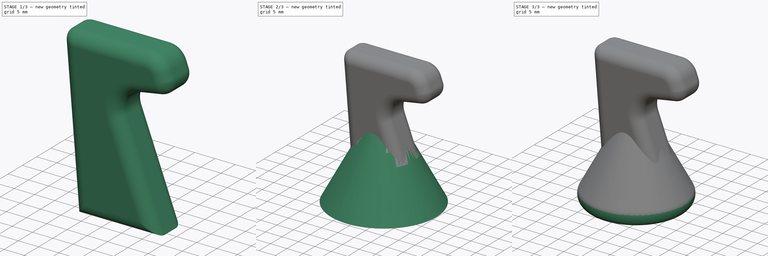
[diagram: build sequence overview — one tinted view per stage of 3, left to right]
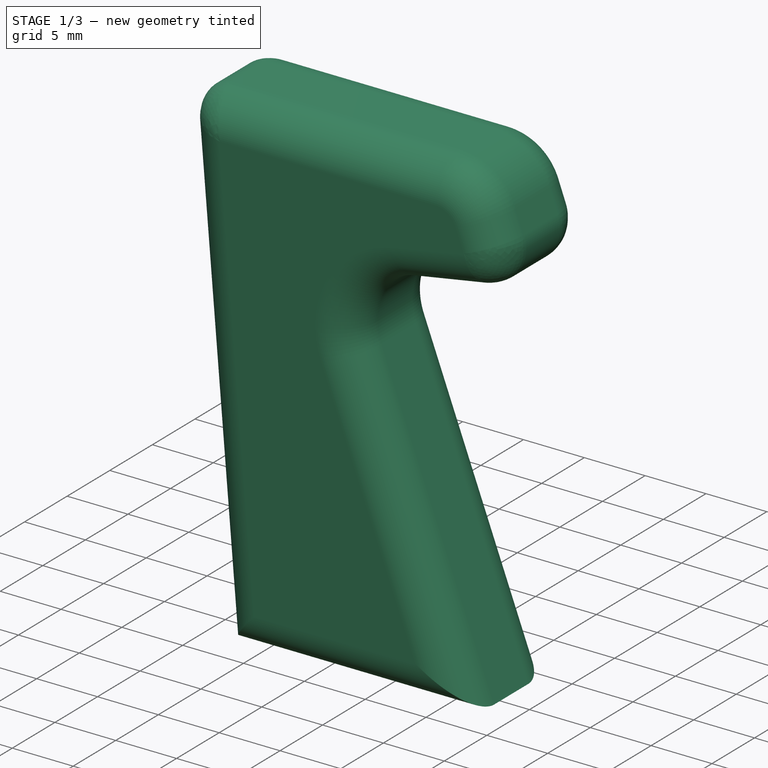
[diagram: stage 1 of 3 — iso view after this stage's code; geometry added in this stage tinted green]
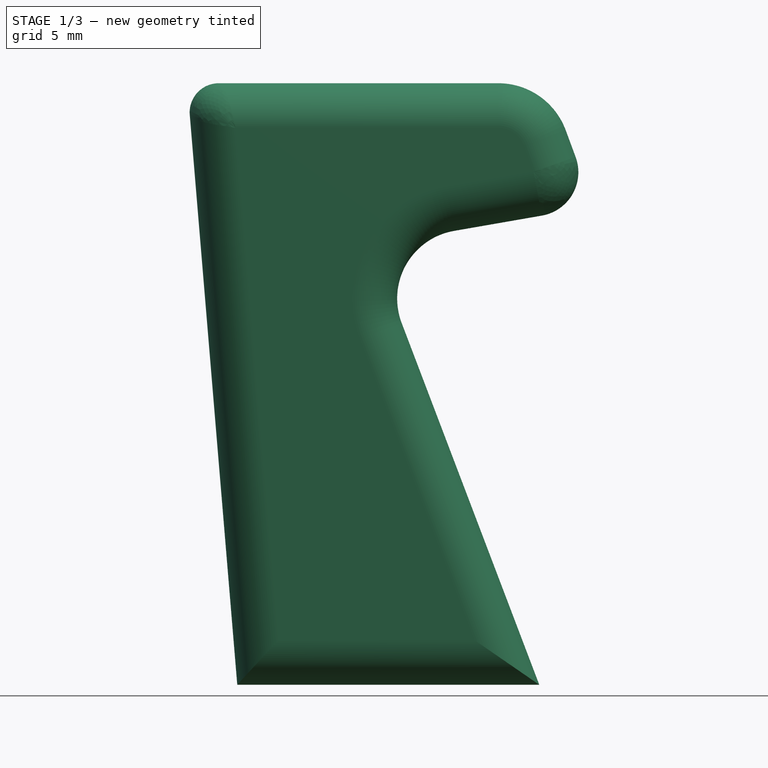
[diagram: stage 1 of 3 — front view after this stage's code; geometry added in this stage tinted green]
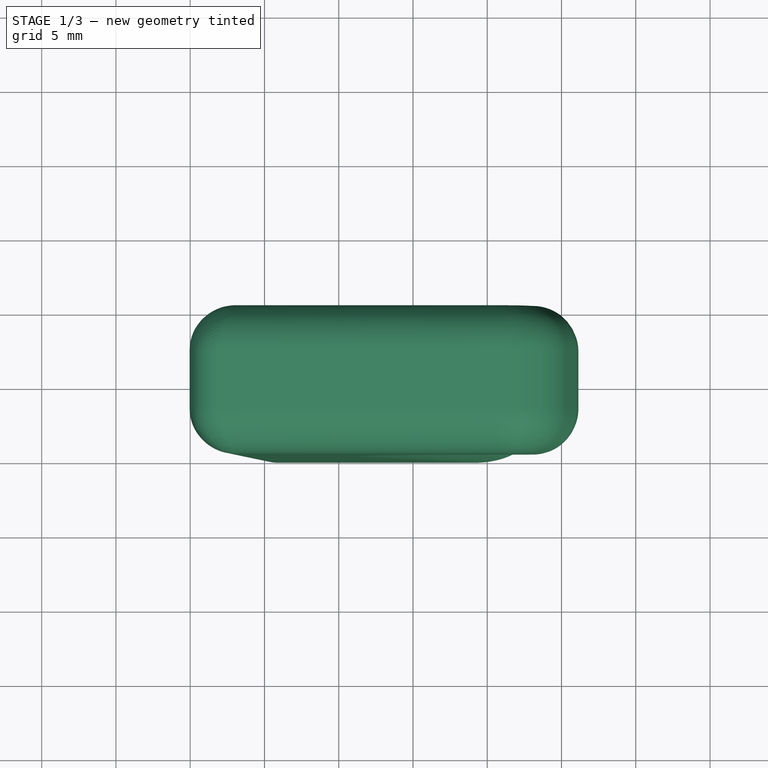
[diagram: stage 1 of 3 — top view after this stage's code; geometry added in this stage tinted green]
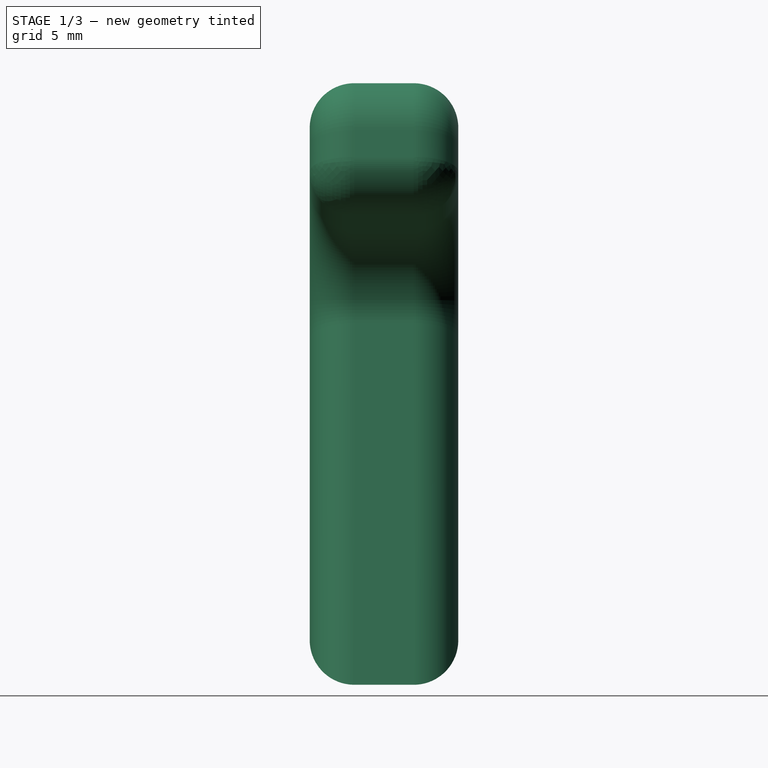
[diagram: stage 1 of 3 — right view after this stage's code; geometry added in this stage tinted green]
FCSTD DOCUMENT  (FreeCAD 0.16R)
Label: Knight1
License: All rights reserved
LicenseURL: http://en.wikipedia.org/wiki/All_rights_reserved
objects: Sketcher::SketchObject×2, PartDesign::Fillet×2, PartDesign::Pad×1, PartDesign::Revolution×1, Part::MultiFuse×1
note: 9 computed .brp shape members not serialized (recipe doc carries the construction recipe); baked Part::Feature solids carry a one-line shape summary decoded from their .brp

FEATURE [Sketcher::SketchObject] Sketch
  Placement = pos=(0,0,0) rot=(-1,0,0;4.71239rad)
  sketch-geometry (10):
    g0: LineSegment StartX=-8.0749 StartY=40.5004 StartZ=0 EndX=10.7419 EndY=40.5004 EndZ=0
    g1: LineSegment StartX=15.2796 StartY=37.3423 StartZ=0 EndX=15.9481 EndY=35.5376 EndZ=0
    g2: LineSegment StartX=13.6765 StartY=31.5873 StartZ=0 EndX=7.76112 EndY=30.558 EndZ=0
    g3: LineSegment StartX=4.23433 StartY=24.3626 StartZ=0 EndX=13.5019 EndY=0 EndZ=0
    g4: LineSegment StartX=13.5019 StartY=0 StartZ=0 EndX=-6.83208 EndY=0 EndZ=0
    g5: LineSegment StartX=-10.0309 StartY=38.3745 StartZ=0 EndX=-6.83208 EndY=0 EndZ=0
    g6: ArcOfCircle CenterX=-8.0749 CenterY=38.5375 CenterZ=0 NormalX=0 NormalY=0 NormalZ=1 Radius=1.96282 StartAngle=1.5708 EndAngle=3.22476
    g7: ArcOfCircle CenterX=8.55326 CenterY=26.0055 CenterZ=0 NormalX=0 NormalY=0 NormalZ=1 Radius=4.62086 StartAngle=1.74307 EndAngle=3.50509
    g8: ArcOfCircle CenterX=10.7419 CenterY=35.6613 CenterZ=0 NormalX=0 NormalY=0 NormalZ=1 Radius=4.83904 StartAngle=0.354783 EndAngle=1.5708
    g9: ArcOfCircle CenterX=13.1683 CenterY=34.5078 CenterZ=0 NormalX=0 NormalY=0 NormalZ=1 Radius=2.96441 StartAngle=4.88467 EndAngle=6.63797
  constraints (13):
    c: Horizontal(g0)
    c: Coincident(g3,g4)
    c: PointOnObject(g4,g-1)
    c: Horizontal(g4)
    c: Coincident(g5,g4)
    c: Tangent(g0,g6) = 1.5708
    c: Tangent(g5,g6) = -1.5708
    c: Tangent(g2,g7) = -1.5708
    c: Tangent(g3,g7) = -1.5708
    c: Tangent(g0,g8) = 1.5708
    c: Tangent(g1,g8) = 1.5708
    c: Tangent(g1,g9) = 1.5708
    c: Tangent(g2,g9) = 1.5708
FEATURE [PartDesign::Pad] Pad
  Length = 10
  Length2 = 100
  Midplane = true
  Placement = pos=(0,0,0) rot=(-1,0,0;4.71239rad)
  Sketch = -> Sketch
  Type = 0
FEATURE [PartDesign::Fillet] Fillet
  Base = -> Pad [Edge4,Edge7,Edge10,Edge13,Edge16,Edge19,Edge22,Edge25,Edge28,Edge30,Edge3,Edge6,Edge9,Edge12,Edge15,Edge18,Edge21,Edge24,Edge27,Edge29]
  Placement = pos=(0,0,0) rot=(-1,0,0;4.71239rad)
  Radius = 3
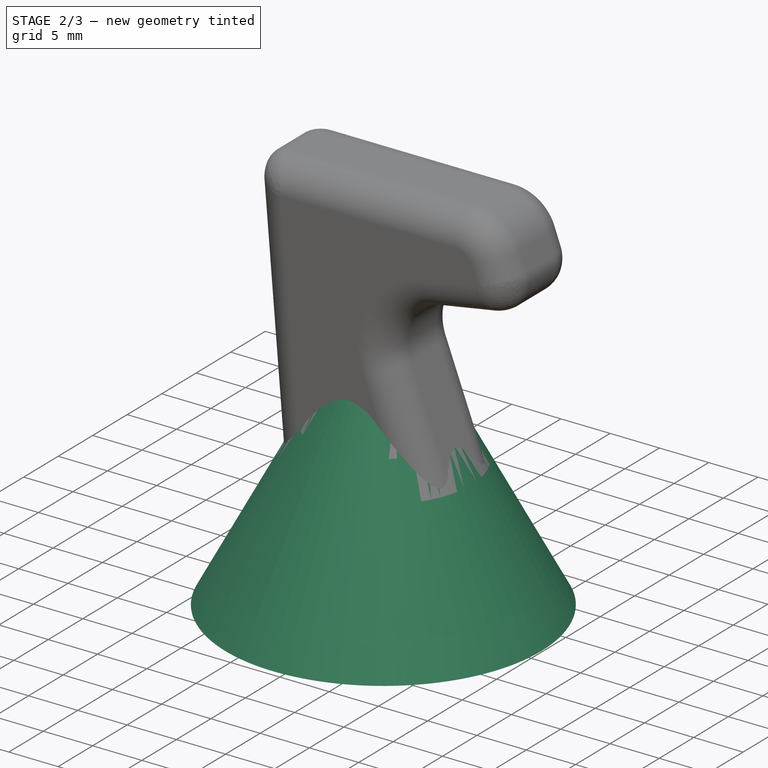
[diagram: stage 2 of 3 — iso view after this stage's code; geometry added in this stage tinted green]
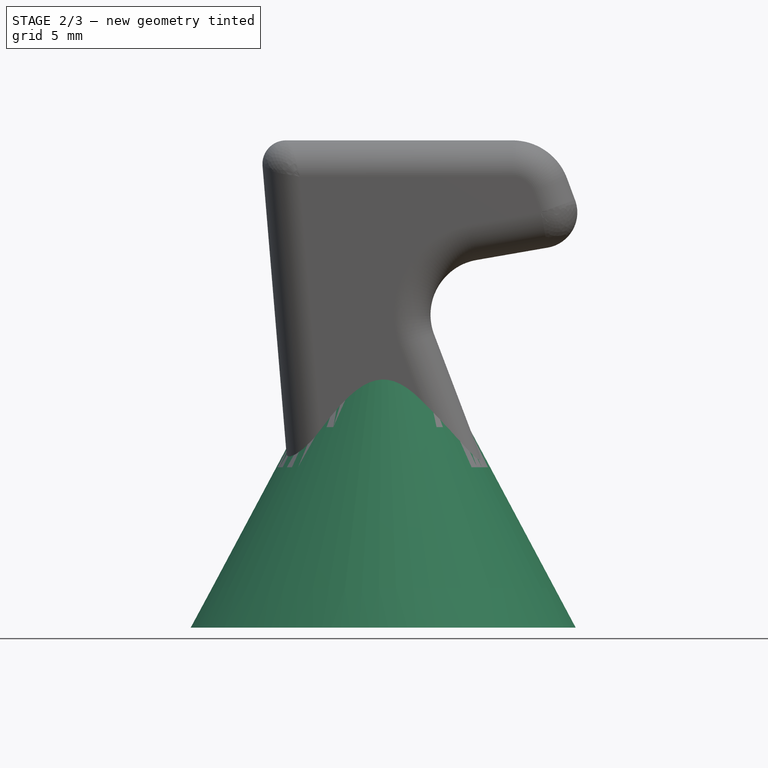
[diagram: stage 2 of 3 — front view after this stage's code; geometry added in this stage tinted green]
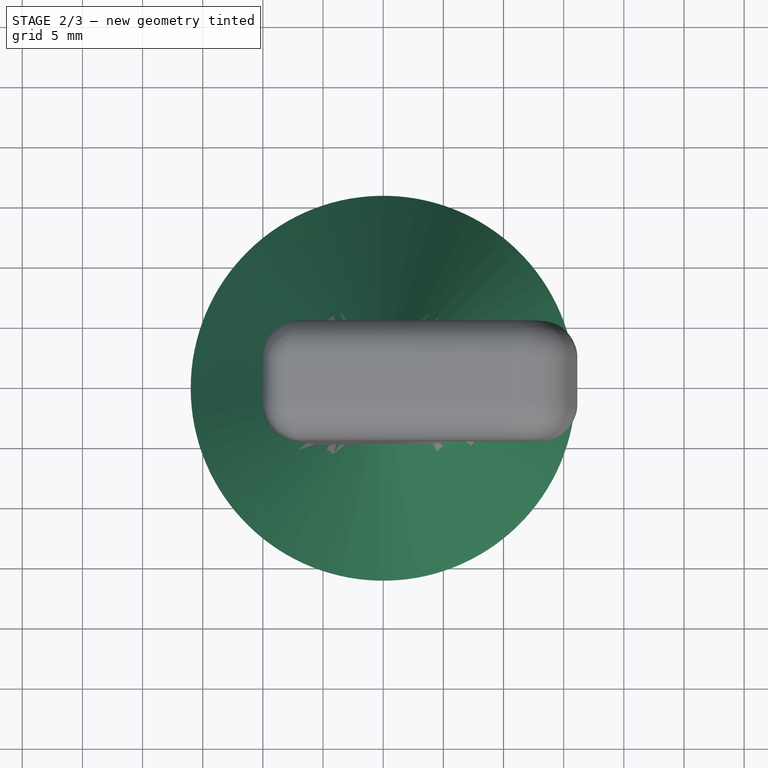
[diagram: stage 2 of 3 — top view after this stage's code; geometry added in this stage tinted green]
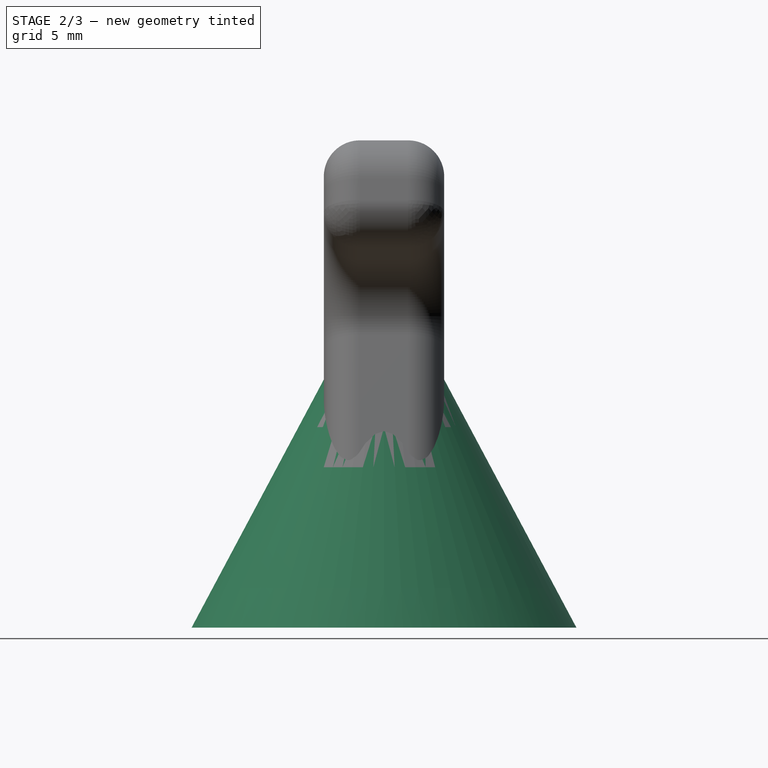
[diagram: stage 2 of 3 — right view after this stage's code; geometry added in this stage tinted green]
FEATURE [Sketcher::SketchObject] Sketch001
  Placement = pos=(0,0,0) rot=(-1,0,0;4.71239rad)
  sketch-geometry (3):
    g0: LineSegment StartX=0 StartY=30 StartZ=0 EndX=16 EndY=0 EndZ=0
    g1: LineSegment StartX=16 StartY=0 StartZ=0 EndX=0 EndY=0 EndZ=0
    g2: LineSegment StartX=0 StartY=0 StartZ=0 EndX=0 EndY=30 EndZ=0
  constraints (8):
    c: Coincident(g0,g1)
    c: Coincident(g1,g-1)
    c: Horizontal(g1)
    c: Coincident(g1,g2)
    c: Coincident(g2,g0)
    c: Vertical(g2)
    c: DistanceX(g1,g1) = 16
    c: DistanceY(g2,g2) = 30
FEATURE [PartDesign::Revolution] Revolution
  Angle = 360
  Axis = (0,0,1)
  Base = (0,0,0)
  Placement = pos=(0,0,0) rot=(-1,0,0;4.71239rad)
  ReferenceAxis = -> Sketch001 [V_Axis]
  Reversed = true
  Sketch = -> Sketch001
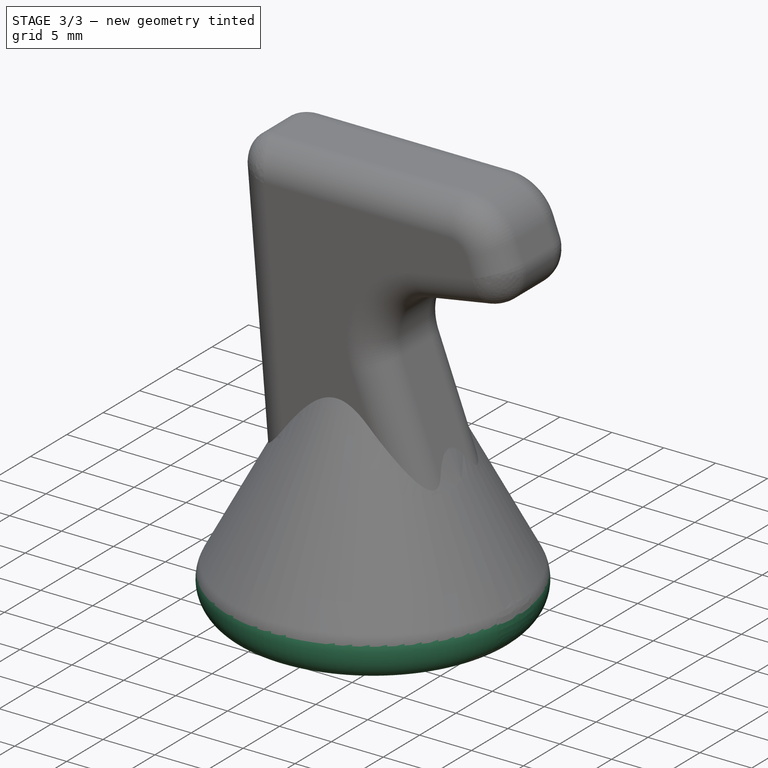
[diagram: stage 3 of 3 — iso view after this stage's code; geometry added in this stage tinted green]
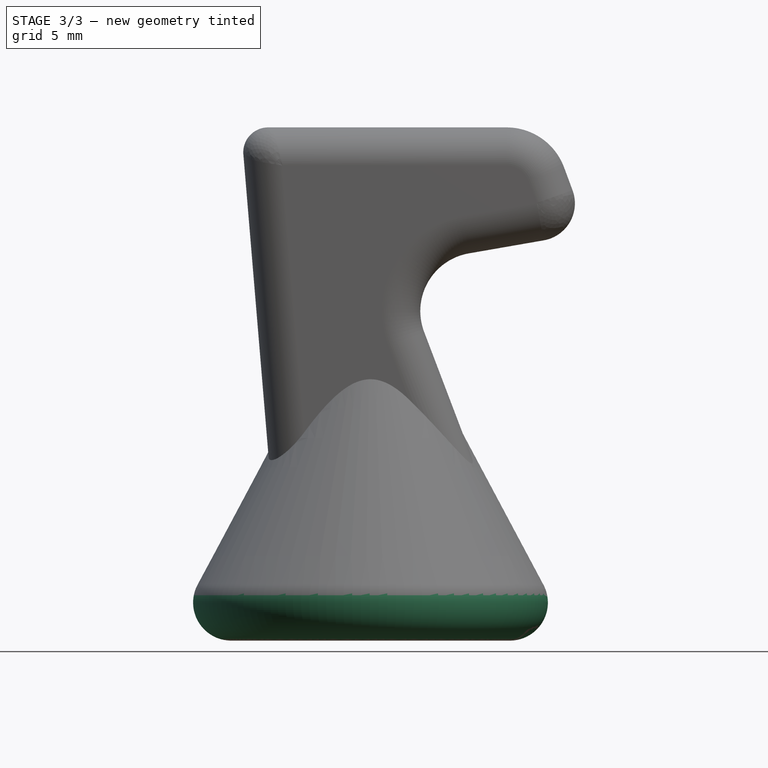
[diagram: stage 3 of 3 — front view after this stage's code; geometry added in this stage tinted green]
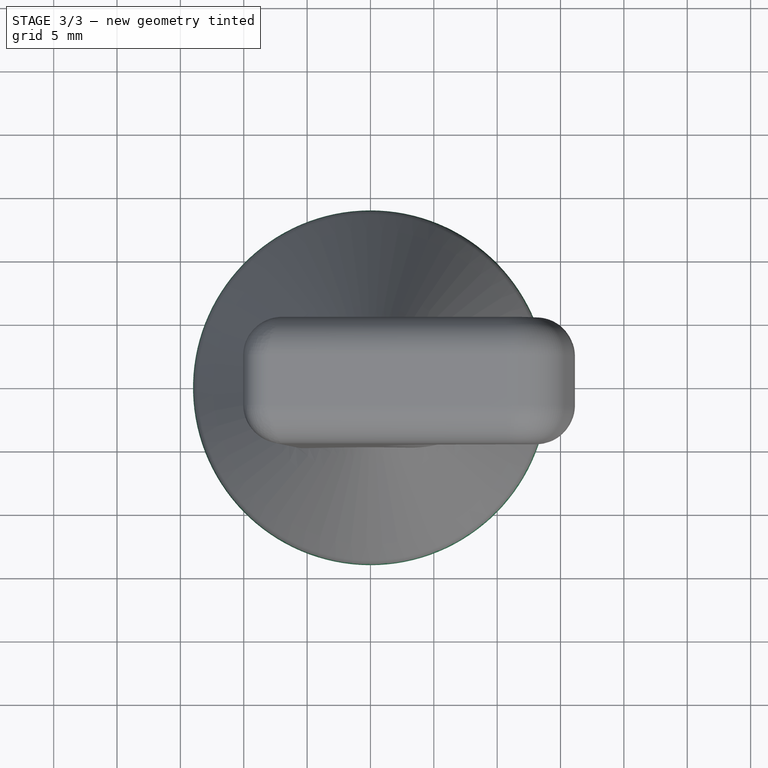
[diagram: stage 3 of 3 — top view after this stage's code; geometry added in this stage tinted green]
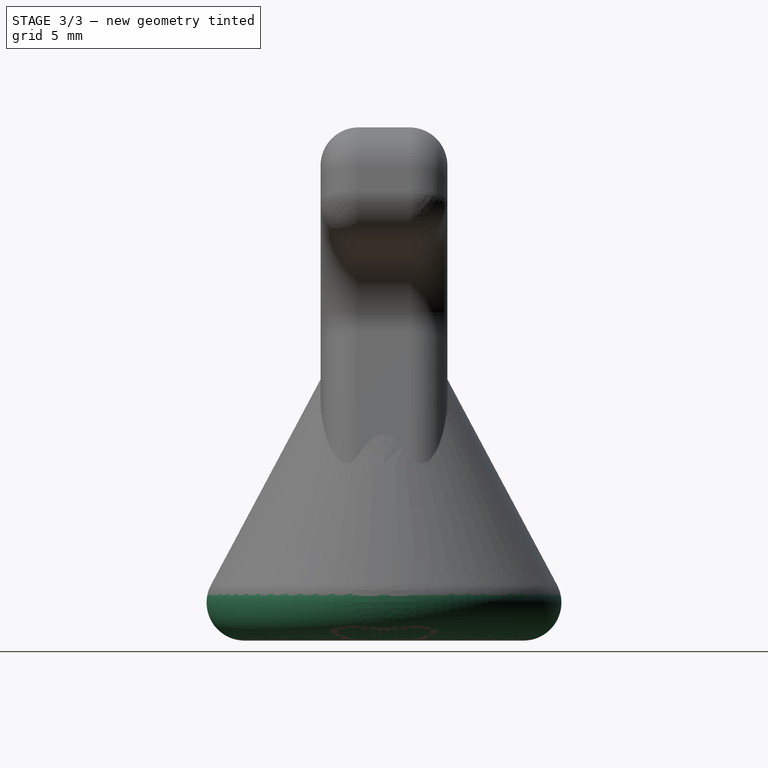
[diagram: stage 3 of 3 — right view after this stage's code; geometry added in this stage tinted green]
FEATURE [Part::MultiFuse] Fusion
  Shapes = -> [Revolution,Fillet]
FEATURE [PartDesign::Fillet] Fillet001
  Base = -> Fusion [Edge35]
  Radius = 3
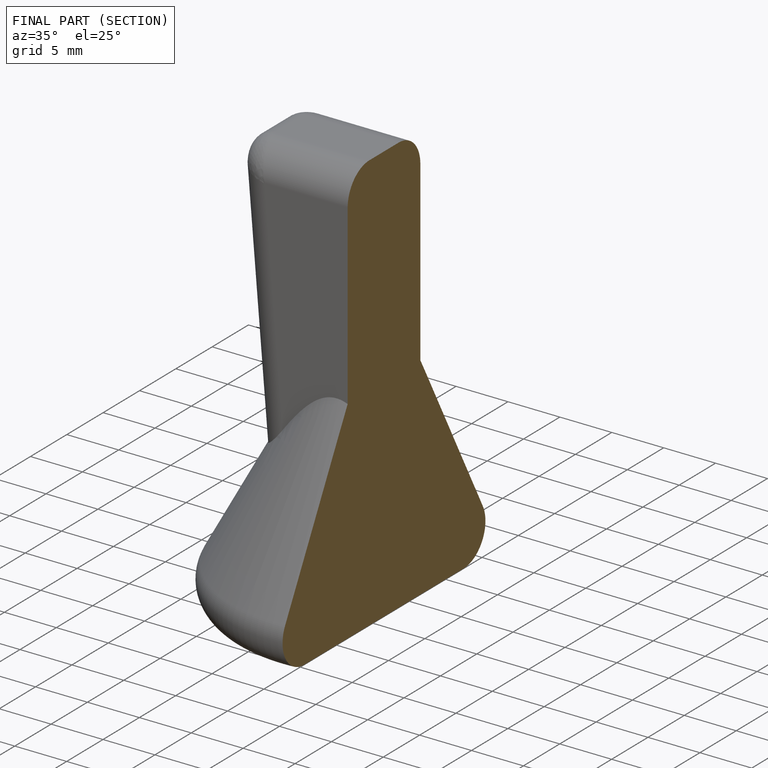
[diagram: finished part — half-section view (interior)]
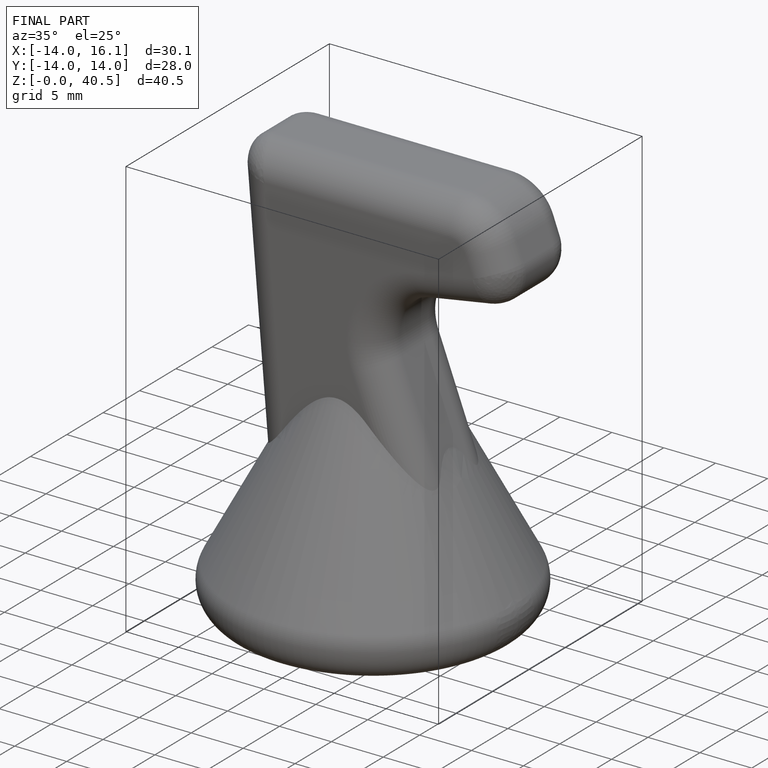
[diagram: finished part — iso view with bounding-box wireframe]
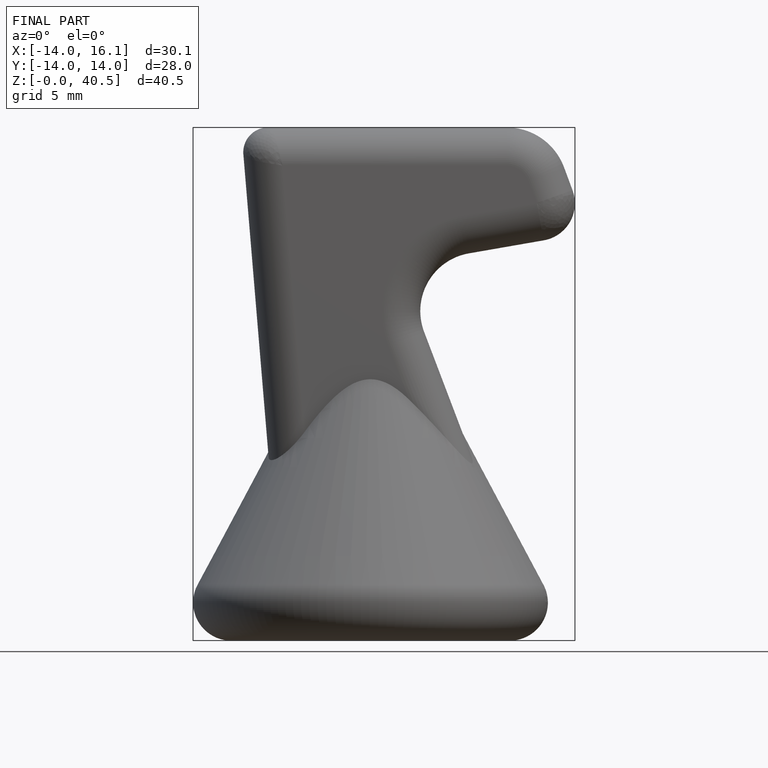
[diagram: finished part — front view with bounding-box wireframe]
